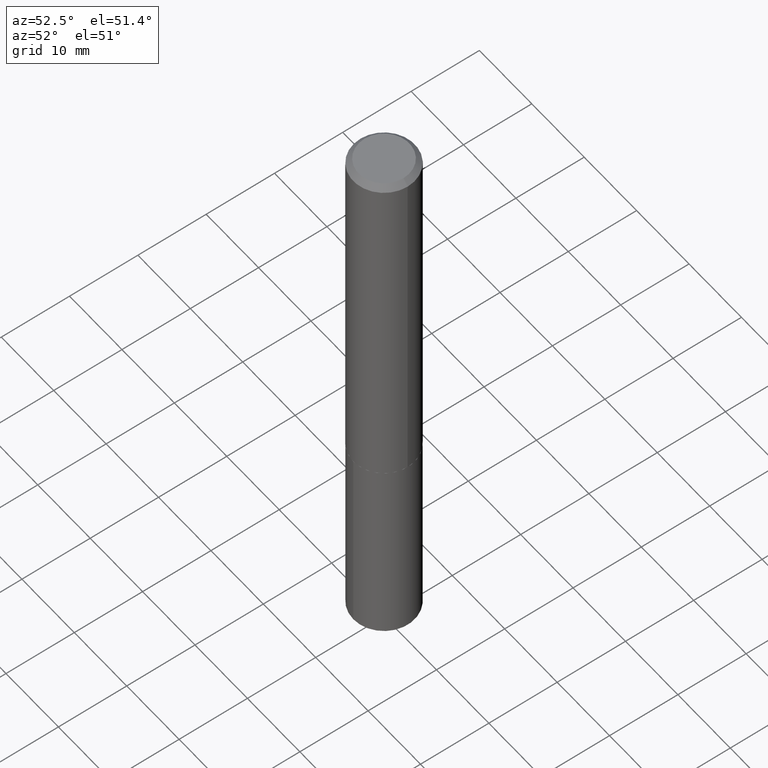
[diagram: clean part render]
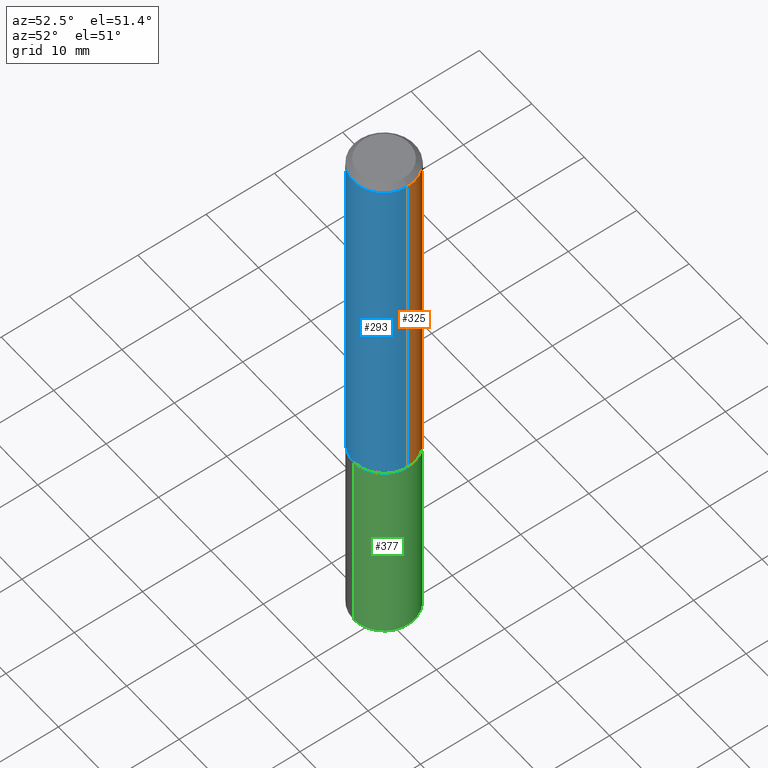
[diagram: same view with three faces highlighted in distinct colors, each labeled with its STEP entity id]
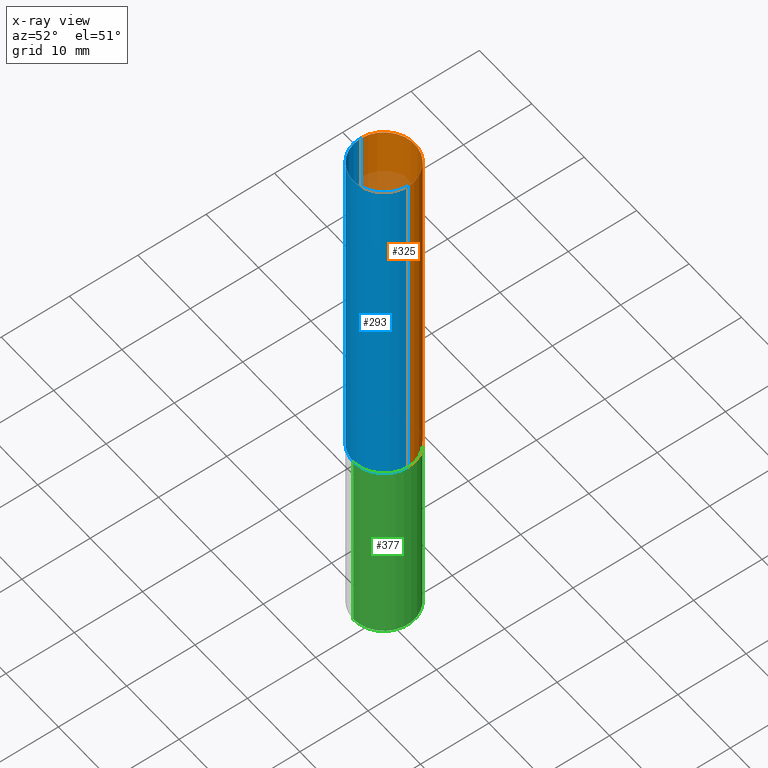
[diagram: x-ray of the same camera — body ghosted, the three highlighted faces saturated]
A machine part, auxiliary view with three faces highlighted in distinct colors.
The next image is the same camera in x-ray (body ghosted, the three faces saturated) — at least one of them is partly hidden behind the body in this view.
Their STEP definitions:

[orange] entity #325 — the highlighted cylindrical surface (partial cylindrical patch) has radius 4.4996 mm, axis along (-0, 0, 1).
#1 = DIRECTION ( 'NONE',  ( 1.000000000000000000, -6.982962677686266711E-15, 4.876176775795935793E-29 ) ) ;
#5 = EDGE_CURVE ( 'NONE', #71, #315, #258, .T. ) ;
#36 = CYLINDRICAL_SURFACE ( 'NONE', #184, 0.1771500000000001129 ) ;
#60 = CARTESIAN_POINT ( 'NONE',  ( -0.1771500000000002240, -6.024852764561670589E-15, -2.086100000000000954 ) ) ;
#62 = CIRCLE ( 'NONE', #290, 0.1771500000000002240 ) ;
#71 = VERTEX_POINT ( 'NONE', #295 ) ;
#82 = DIRECTION ( 'NONE',  ( 1.000000000000000000, -6.982962677686263555E-15, 0.000000000000000000 ) ) ;
#97 = VERTEX_POINT ( 'NONE', #263 ) ;
#116 = ORIENTED_EDGE ( 'NONE', *, *, #214, .F. ) ;
#123 = DIRECTION ( 'NONE',  ( -2.445468806185136597E-29, 3.491481338843145583E-15, 1.000000000000000000 ) ) ;
#133 = LINE ( 'NONE', #358, #267 ) ;
#136 = AXIS2_PLACEMENT_3D ( 'NONE', #167, #223, #350 ) ;
#146 = FACE_OUTER_BOUND ( 'NONE', #345, .T. ) ;
#151 = CARTESIAN_POINT ( 'NONE',  ( 0.000000000000000000, 0.000000000000000000, 0.000000000000000000 ) ) ;
#167 = CARTESIAN_POINT ( 'NONE',  ( 7.642090019328603538E-31, -1.091087918388490390E-16, -0.03125000000000021511 ) ) ;
#176 = CARTESIAN_POINT ( 'NONE',  ( 0.1771500000000001129, -1.237031838352122986E-15, 8.638147158322505565E-30 ) ) ;
#184 = AXIS2_PLACEMENT_3D ( 'NONE', #151, #123, #1 ) ;
#214 = EDGE_CURVE ( 'NONE', #97, #71, #362, .T. ) ;
#215 = ORIENTED_EDGE ( 'NONE', *, *, #373, .T. ) ;
#216 = EDGE_CURVE ( 'NONE', #97, #249, #62, .T. ) ;
#223 = DIRECTION ( 'NONE',  ( -2.445468806185136597E-29, 3.491481338843145583E-15, 1.000000000000000000 ) ) ;
#231 = DIRECTION ( 'NONE',  ( -2.445468806185136877E-29, 3.491481338843145188E-15, 1.000000000000000000 ) ) ;
#249 = VERTEX_POINT ( 'NONE', #60 ) ;
#258 = CIRCLE ( 'NONE', #136, 0.1771500000000000019 ) ;
#259 = DIRECTION ( 'NONE',  ( -2.445468806185136877E-29, 3.491481338843145188E-15, 1.000000000000000000 ) ) ;
#263 = CARTESIAN_POINT ( 'NONE',  ( 0.1771500000000002240, -8.520611059312812251E-15, -2.086100000000000954 ) ) ;
#267 = VECTOR ( 'NONE', #259, 39.37007874015748143 ) ;
#290 = AXIS2_PLACEMENT_3D ( 'NONE', #357, #301, #82 ) ;
#295 = CARTESIAN_POINT ( 'NONE',  ( 0.1771500000000000019, -1.346140630190971297E-15, -0.03125000000000021511 ) ) ;
#301 = DIRECTION ( 'NONE',  ( -2.445468806185136597E-29, 3.491481338843145583E-15, 1.000000000000000000 ) ) ;
#315 = VERTEX_POINT ( 'NONE', #334 ) ;
#321 = ORIENTED_EDGE ( 'NONE', *, *, #5, .F. ) ;
#325 = ADVANCED_FACE ( 'NONE', ( #146 ), #36, .T. ) ;
#334 = CARTESIAN_POINT ( 'NONE',  ( -0.1771500000000000019, -2.437617550000750605E-15, -0.03125000000000021511 ) ) ;
#335 = VECTOR ( 'NONE', #231, 39.37007874015748143 ) ;
#342 = ORIENTED_EDGE ( 'NONE', *, *, #216, .T. ) ;
#345 = EDGE_LOOP ( 'NONE', ( #342, #215, #321, #116 ) ) ;
#350 = DIRECTION ( 'NONE',  ( 1.000000000000000000, -6.982962677686266711E-15, 0.000000000000000000 ) ) ;
#357 = CARTESIAN_POINT ( 'NONE',  ( 5.101492476582815716E-29, -7.283579220960688279E-15, -2.086100000000000954 ) ) ;
#358 = CARTESIAN_POINT ( 'NONE',  ( -0.1771500000000001129, 1.258726456399018282E-15, -8.713893512386570931E-30 ) ) ;
#362 = LINE ( 'NONE', #176, #335 ) ;
#373 = EDGE_CURVE ( 'NONE', #249, #315, #133, .T. ) ;

[blue] entity #293 — the highlighted cylindrical surface (partial cylindrical patch) has radius 4.4996 mm, axis along (-0, 0, 1).
#12 = DIRECTION ( 'NONE',  ( -2.445468806185136597E-29, 3.491481338843145583E-15, 1.000000000000000000 ) ) ;
#41 = EDGE_CURVE ( 'NONE', #315, #71, #121, .T. ) ;
#54 = FACE_OUTER_BOUND ( 'NONE', #186, .T. ) ;
#60 = CARTESIAN_POINT ( 'NONE',  ( -0.1771500000000002240, -6.024852764561670589E-15, -2.086100000000000954 ) ) ;
#71 = VERTEX_POINT ( 'NONE', #295 ) ;
#74 = AXIS2_PLACEMENT_3D ( 'NONE', #284, #12, #257 ) ;
#79 = CARTESIAN_POINT ( 'NONE',  ( 0.000000000000000000, 0.000000000000000000, 0.000000000000000000 ) ) ;
#80 = ORIENTED_EDGE ( 'NONE', *, *, #214, .T. ) ;
#97 = VERTEX_POINT ( 'NONE', #263 ) ;
#118 = DIRECTION ( 'NONE',  ( -2.445468806185136597E-29, 3.491481338843145583E-15, 1.000000000000000000 ) ) ;
#121 = CIRCLE ( 'NONE', #74, 0.1771500000000000019 ) ;
#129 = AXIS2_PLACEMENT_3D ( 'NONE', #79, #118, #209 ) ;
#131 = ORIENTED_EDGE ( 'NONE', *, *, #281, .T. ) ;
#133 = LINE ( 'NONE', #358, #267 ) ;
#163 = CIRCLE ( 'NONE', #387, 0.1771500000000002240 ) ;
#169 = CYLINDRICAL_SURFACE ( 'NONE', #129, 0.1771500000000001129 ) ;
#176 = CARTESIAN_POINT ( 'NONE',  ( 0.1771500000000001129, -1.237031838352122986E-15, 8.638147158322505565E-30 ) ) ;
#186 = EDGE_LOOP ( 'NONE', ( #343, #131, #80, #221 ) ) ;
#209 = DIRECTION ( 'NONE',  ( 1.000000000000000000, -6.982962677686266711E-15, 4.876176775795935793E-29 ) ) ;
#214 = EDGE_CURVE ( 'NONE', #97, #71, #362, .T. ) ;
#221 = ORIENTED_EDGE ( 'NONE', *, *, #41, .F. ) ;
#231 = DIRECTION ( 'NONE',  ( -2.445468806185136877E-29, 3.491481338843145188E-15, 1.000000000000000000 ) ) ;
#249 = VERTEX_POINT ( 'NONE', #60 ) ;
#257 = DIRECTION ( 'NONE',  ( 1.000000000000000000, -6.982962677686266711E-15, 0.000000000000000000 ) ) ;
#259 = DIRECTION ( 'NONE',  ( -2.445468806185136877E-29, 3.491481338843145188E-15, 1.000000000000000000 ) ) ;
#263 = CARTESIAN_POINT ( 'NONE',  ( 0.1771500000000002240, -8.520611059312812251E-15, -2.086100000000000954 ) ) ;
#267 = VECTOR ( 'NONE', #259, 39.37007874015748143 ) ;
#269 = DIRECTION ( 'NONE',  ( -2.445468806185136597E-29, 3.491481338843145583E-15, 1.000000000000000000 ) ) ;
#281 = EDGE_CURVE ( 'NONE', #249, #97, #163, .T. ) ;
#284 = CARTESIAN_POINT ( 'NONE',  ( 7.642090019328603538E-31, -1.091087918388490390E-16, -0.03125000000000021511 ) ) ;
#293 = ADVANCED_FACE ( 'NONE', ( #54 ), #169, .T. ) ;
#295 = CARTESIAN_POINT ( 'NONE',  ( 0.1771500000000000019, -1.346140630190971297E-15, -0.03125000000000021511 ) ) ;
#297 = CARTESIAN_POINT ( 'NONE',  ( 5.101492476582815716E-29, -7.283579220960688279E-15, -2.086100000000000954 ) ) ;
#315 = VERTEX_POINT ( 'NONE', #334 ) ;
#334 = CARTESIAN_POINT ( 'NONE',  ( -0.1771500000000000019, -2.437617550000750605E-15, -0.03125000000000021511 ) ) ;
#335 = VECTOR ( 'NONE', #231, 39.37007874015748143 ) ;
#343 = ORIENTED_EDGE ( 'NONE', *, *, #373, .F. ) ;
#358 = CARTESIAN_POINT ( 'NONE',  ( -0.1771500000000001129, 1.258726456399018282E-15, -8.713893512386570931E-30 ) ) ;
#362 = LINE ( 'NONE', #176, #335 ) ;
#373 = EDGE_CURVE ( 'NONE', #249, #315, #133, .T. ) ;
#387 = AXIS2_PLACEMENT_3D ( 'NONE', #297, #269, #390 ) ;
#390 = DIRECTION ( 'NONE',  ( 1.000000000000000000, -6.982962677686263555E-15, 0.000000000000000000 ) ) ;

[green] entity #377 — the highlighted cylindrical surface (partial cylindrical patch) has radius 4.4996 mm, axis along (-0, 0, 1).
#10 = ORIENTED_EDGE ( 'NONE', *, *, #361, .F. ) ;
#17 = ORIENTED_EDGE ( 'NONE', *, *, #265, .T. ) ;
#65 = LINE ( 'NONE', #304, #244 ) ;
#78 = CARTESIAN_POINT ( 'NONE',  ( 5.102715210985907397E-29, -7.285324961630108994E-15, -2.086600000000000676 ) ) ;
#95 = AXIS2_PLACEMENT_3D ( 'NONE', #78, #264, #359 ) ;
#103 = CARTESIAN_POINT ( 'NONE',  ( -1.237031838352071118E-15, -0.1771500000000073016, -2.086600000000000232 ) ) ;
#119 = ORIENTED_EDGE ( 'NONE', *, *, #164, .F. ) ;
#128 = AXIS2_PLACEMENT_3D ( 'NONE', #389, #383, #296 ) ;
#147 = AXIS2_PLACEMENT_3D ( 'NONE', #234, #360, #225 ) ;
#162 = EDGE_LOOP ( 'NONE', ( #17, #252, #119, #10 ) ) ;
#164 = EDGE_CURVE ( 'NONE', #165, #170, #218, .T. ) ;
#165 = VERTEX_POINT ( 'NONE', #103 ) ;
#170 = VERTEX_POINT ( 'NONE', #266 ) ;
#189 = VERTEX_POINT ( 'NONE', #262 ) ;
#198 = CARTESIAN_POINT ( 'NONE',  ( -1.237031838352071118E-15, -0.1771500000000073016, -2.086600000000000232 ) ) ;
#218 = CIRCLE ( 'NONE', #95, 0.1771500000000000019 ) ;
#225 = DIRECTION ( 'NONE',  ( -6.982962677686265922E-15, -1.000000000000000000, 3.084220145260246224E-15 ) ) ;
#232 = DIRECTION ( 'NONE',  ( -2.445771156139322512E-29, 3.491048356500061707E-15, 1.000000000000000000 ) ) ;
#234 = CARTESIAN_POINT ( 'NONE',  ( 5.102715210985907397E-29, -7.285324961630108994E-15, -2.086600000000000676 ) ) ;
#244 = VECTOR ( 'NONE', #310, 39.37007874015748143 ) ;
#252 = ORIENTED_EDGE ( 'NONE', *, *, #316, .T. ) ;
#262 = CARTESIAN_POINT ( 'NONE',  ( -1.237031838352043113E-15, -0.1771500000000113817, -3.242622672999742051 ) ) ;
#264 = DIRECTION ( 'NONE',  ( -2.445771156139322232E-29, 3.491048356500061313E-15, 1.000000000000000000 ) ) ;
#265 = EDGE_CURVE ( 'NONE', #189, #312, #305, .T. ) ;
#266 = CARTESIAN_POINT ( 'NONE',  ( 1.258726456399096971E-15, 0.1771499999999927299, -2.086600000000001121 ) ) ;
#296 = DIRECTION ( 'NONE',  ( -6.982962677686265922E-15, -1.000000000000000000, 3.084220145260246224E-15 ) ) ;
#304 = CARTESIAN_POINT ( 'NONE',  ( 1.258726456399068374E-15, 0.1771499999999927299, -2.086600000000001121 ) ) ;
#305 = CIRCLE ( 'NONE', #128, 0.1771500000000000019 ) ;
#310 = DIRECTION ( 'NONE',  ( -2.445771156139322512E-29, 3.491048356500061707E-15, 1.000000000000000000 ) ) ;
#312 = VERTEX_POINT ( 'NONE', #372 ) ;
#316 = EDGE_CURVE ( 'NONE', #312, #170, #65, .T. ) ;
#322 = VECTOR ( 'NONE', #232, 39.37007874015748143 ) ;
#323 = LINE ( 'NONE', #198, #322 ) ;
#359 = DIRECTION ( 'NONE',  ( -6.982962677686265922E-15, -1.000000000000000000, 3.084220145260246224E-15 ) ) ;
#360 = DIRECTION ( 'NONE',  ( -2.445771156139322232E-29, 3.491048356500061313E-15, 1.000000000000000000 ) ) ;
#361 = EDGE_CURVE ( 'NONE', #189, #165, #323, .T. ) ;
#372 = CARTESIAN_POINT ( 'NONE',  ( 1.258726456399097168E-15, 0.1771499999999887054, -3.242622672999742939 ) ) ;
#377 = ADVANCED_FACE ( 'NONE', ( #380 ), #382, .T. ) ;
#380 = FACE_OUTER_BOUND ( 'NONE', #162, .T. ) ;
#382 = CYLINDRICAL_SURFACE ( 'NONE', #147, 0.1771500000000000019 ) ;
#383 = DIRECTION ( 'NONE',  ( -2.445771156139322232E-29, 3.491048356500061313E-15, 1.000000000000000000 ) ) ;
#389 = CARTESIAN_POINT ( 'NONE',  ( 7.930082120451756435E-29, -1.132105601428266761E-14, -3.242622672999742495 ) ) ;